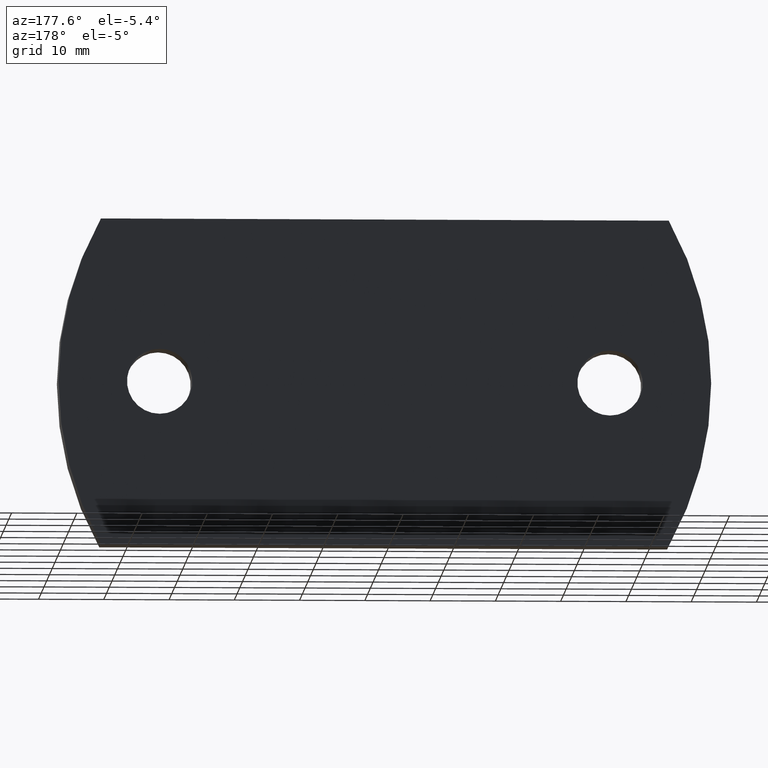
[diagram: clean part render]
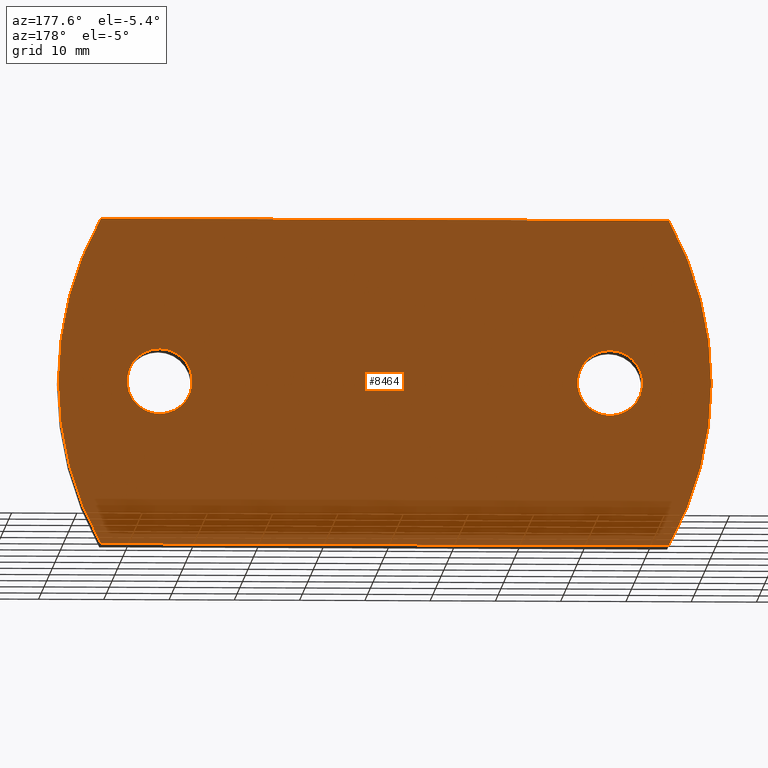
[diagram: same view with one face highlighted and labeled with its STEP entity id]
A machine part, auxiliary view. The second image highlights one B-rep face of the part: STEP entity #8464.
In plain terms, the highlighted planar face has unit normal (0, 1, 0).
Its self-contained STEP definition (entity closure, byte-faithful):
#106 = EDGE_LOOP ( 'NONE', ( #5298, #2709, #3479, #3478 ) ) ;
#423 = VERTEX_POINT ( 'NONE', #8859 ) ;
#887 = CIRCLE ( 'NONE', #1276, 51.32692307692307310 ) ;
#936 = PLANE ( 'NONE',  #9552 ) ;
#957 = DIRECTION ( 'NONE',  ( 0.000000000000000000, 1.000000000000000000, 0.000000000000000000 ) ) ;
#1064 = CARTESIAN_POINT ( 'NONE',  ( -43.50000000000000711, 3.000000000000000000, 25.00000000000000000 ) ) ;
#1185 = DIRECTION ( 'NONE',  ( 0.000000000000000000, 1.000000000000000000, 0.000000000000000000 ) ) ;
#1276 = AXIS2_PLACEMENT_3D ( 'NONE', #8848, #4158, #8806 ) ;
#1648 = CARTESIAN_POINT ( 'NONE',  ( -34.50000000000000000, 3.000000000000000000, 5.000000000000000000 ) ) ;
#1882 = VERTEX_POINT ( 'NONE', #7319 ) ;
#1960 = CARTESIAN_POINT ( 'NONE',  ( 34.50000000000000000, 3.000000000000000000, 4.999999999999988454 ) ) ;
#2049 = EDGE_LOOP ( 'NONE', ( #3226, #2476 ) ) ;
#2104 = CARTESIAN_POINT ( 'NONE',  ( -34.50000000000000000, 3.000000000000000000, 0.000000000000000000 ) ) ;
#2476 = ORIENTED_EDGE ( 'NONE', *, *, #7166, .F. ) ;
#2508 = EDGE_CURVE ( 'NONE', #9059, #4130, #7700, .T. ) ;
#2709 = ORIENTED_EDGE ( 'NONE', *, *, #6780, .T. ) ;
#2768 = AXIS2_PLACEMENT_3D ( 'NONE', #4417, #5984, #7522 ) ;
#2811 = CARTESIAN_POINT ( 'NONE',  ( 34.50000000000000000, 3.000000000000000000, -8.450062914116737844E-15 ) ) ;
#2901 = AXIS2_PLACEMENT_3D ( 'NONE', #9997, #6064, #7545 ) ;
#3201 = EDGE_LOOP ( 'NONE', ( #7086, #5617 ) ) ;
#3226 = ORIENTED_EDGE ( 'NONE', *, *, #6454, .F. ) ;
#3233 = VERTEX_POINT ( 'NONE', #3254 ) ;
#3237 = VERTEX_POINT ( 'NONE', #1648 ) ;
#3254 = CARTESIAN_POINT ( 'NONE',  ( 34.50000000000000000, 3.000000000000000000, -5.000000000000006217 ) ) ;
#3478 = ORIENTED_EDGE ( 'NONE', *, *, #2508, .T. ) ;
#3479 = ORIENTED_EDGE ( 'NONE', *, *, #6729, .T. ) ;
#3786 = DIRECTION ( 'NONE',  ( 0.000000000000000000, 1.000000000000000000, 0.000000000000000000 ) ) ;
#3837 = EDGE_CURVE ( 'NONE', #9156, #3237, #6034, .T. ) ;
#3980 = AXIS2_PLACEMENT_3D ( 'NONE', #2104, #3786, #5265 ) ;
#4130 = VERTEX_POINT ( 'NONE', #5190 ) ;
#4158 = DIRECTION ( 'NONE',  ( 0.000000000000000000, 1.000000000000000000, -0.000000000000000000 ) ) ;
#4231 = DIRECTION ( 'NONE',  ( 0.000000000000000000, 0.000000000000000000, 1.000000000000000000 ) ) ;
#4417 = CARTESIAN_POINT ( 'NONE',  ( 34.50000000000000000, 3.000000000000000000, -8.450062914116737844E-15 ) ) ;
#4643 = CARTESIAN_POINT ( 'NONE',  ( -43.50000000000000711, 3.000000000000000000, -25.00000000000000000 ) ) ;
#4906 = DIRECTION ( 'NONE',  ( 0.000000000000000000, 1.000000000000000000, 0.000000000000000000 ) ) ;
#5086 = FACE_OUTER_BOUND ( 'NONE', #106, .T. ) ;
#5136 = DIRECTION ( 'NONE',  ( 0.000000000000000000, 0.000000000000000000, 1.000000000000000000 ) ) ;
#5190 = CARTESIAN_POINT ( 'NONE',  ( -43.50000000000000711, 3.000000000000000000, -25.00000000000000000 ) ) ;
#5205 = FACE_BOUND ( 'NONE', #3201, .T. ) ;
#5265 = DIRECTION ( 'NONE',  ( 0.000000000000000000, 0.000000000000000000, 1.000000000000000000 ) ) ;
#5298 = ORIENTED_EDGE ( 'NONE', *, *, #6597, .T. ) ;
#5448 = VERTEX_POINT ( 'NONE', #1960 ) ;
#5556 = DIRECTION ( 'NONE',  ( -1.000000000000000000, -0.000000000000000000, 3.190296047773438629E-16 ) ) ;
#5574 = AXIS2_PLACEMENT_3D ( 'NONE', #2811, #1185, #5136 ) ;
#5617 = ORIENTED_EDGE ( 'NONE', *, *, #3837, .F. ) ;
#5971 = CIRCLE ( 'NONE', #5574, 4.999999999999997335 ) ;
#5984 = DIRECTION ( 'NONE',  ( 0.000000000000000000, 1.000000000000000000, 0.000000000000000000 ) ) ;
#6034 = CIRCLE ( 'NONE', #8026, 5.000000000000000000 ) ;
#6064 = DIRECTION ( 'NONE',  ( 0.000000000000000000, 1.000000000000000000, 0.000000000000000000 ) ) ;
#6454 = EDGE_CURVE ( 'NONE', #5448, #3233, #8847, .T. ) ;
#6493 = DIRECTION ( 'NONE',  ( 0.000000000000000000, -0.000000000000000000, 1.000000000000000000 ) ) ;
#6597 = EDGE_CURVE ( 'NONE', #4130, #423, #8732, .T. ) ;
#6652 = DIRECTION ( 'NONE',  ( 1.000000000000000000, 0.000000000000000000, 3.190296047773438629E-16 ) ) ;
#6698 = LINE ( 'NONE', #1064, #8593 ) ;
#6729 = EDGE_CURVE ( 'NONE', #1882, #9059, #887, .T. ) ;
#6780 = EDGE_CURVE ( 'NONE', #423, #1882, #6698, .T. ) ;
#6930 = VECTOR ( 'NONE', #5556, 1000.000000000000000 ) ;
#7086 = ORIENTED_EDGE ( 'NONE', *, *, #7358, .F. ) ;
#7166 = EDGE_CURVE ( 'NONE', #3233, #5448, #5971, .T. ) ;
#7319 = CARTESIAN_POINT ( 'NONE',  ( 43.49999999999998579, 3.000000000000000000, 25.00000000000003553 ) ) ;
#7358 = EDGE_CURVE ( 'NONE', #3237, #9156, #10031, .T. ) ;
#7522 = DIRECTION ( 'NONE',  ( 0.000000000000000000, 0.000000000000000000, 1.000000000000000000 ) ) ;
#7545 = DIRECTION ( 'NONE',  ( 0.000000000000000000, 0.000000000000000000, 1.000000000000000000 ) ) ;
#7700 = LINE ( 'NONE', #4643, #6930 ) ;
#8026 = AXIS2_PLACEMENT_3D ( 'NONE', #8058, #957, #4231 ) ;
#8039 = CARTESIAN_POINT ( 'NONE',  ( 1.326923076923072653, 3.000000000000000000, 0.000000000000000000 ) ) ;
#8058 = CARTESIAN_POINT ( 'NONE',  ( -34.50000000000000000, 3.000000000000000000, 0.000000000000000000 ) ) ;
#8382 = CARTESIAN_POINT ( 'NONE',  ( 43.49999999999999289, 3.000000000000000000, -25.00000000000002842 ) ) ;
#8464 = ADVANCED_FACE ( 'NONE', ( #5205, #9283, #5086 ), #936, .T. ) ;
#8593 = VECTOR ( 'NONE', #6652, 1000.000000000000000 ) ;
#8732 = CIRCLE ( 'NONE', #2901, 51.32692307692307310 ) ;
#8806 = DIRECTION ( 'NONE',  ( 0.000000000000000000, 0.000000000000000000, -1.000000000000000000 ) ) ;
#8847 = CIRCLE ( 'NONE', #2768, 4.999999999999997335 ) ;
#8848 = CARTESIAN_POINT ( 'NONE',  ( -1.326923076923072653, 3.000000000000000000, 3.250024197737195523E-16 ) ) ;
#8859 = CARTESIAN_POINT ( 'NONE',  ( -43.50000000000000711, 3.000000000000000000, 25.00000000000000000 ) ) ;
#9059 = VERTEX_POINT ( 'NONE', #8382 ) ;
#9156 = VERTEX_POINT ( 'NONE', #10035 ) ;
#9283 = FACE_BOUND ( 'NONE', #2049, .T. ) ;
#9552 = AXIS2_PLACEMENT_3D ( 'NONE', #8039, #4906, #6493 ) ;
#9997 = CARTESIAN_POINT ( 'NONE',  ( 1.326923076923072653, 3.000000000000000000, 0.000000000000000000 ) ) ;
#10031 = CIRCLE ( 'NONE', #3980, 5.000000000000000000 ) ;
#10035 = CARTESIAN_POINT ( 'NONE',  ( -34.50000000000000000, 3.000000000000000000, -5.000000000000000000 ) ) ;